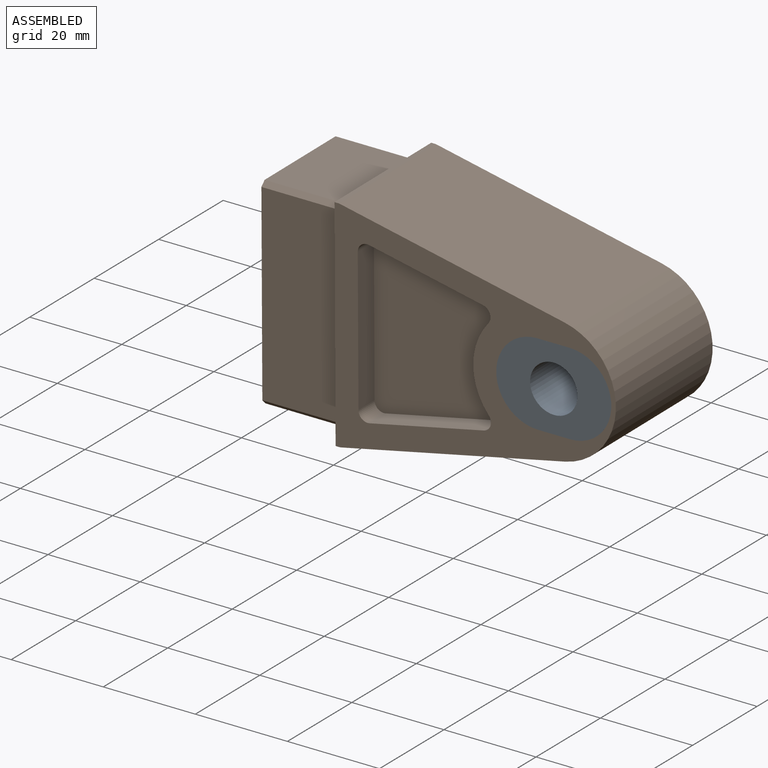
[diagram: assembled view]
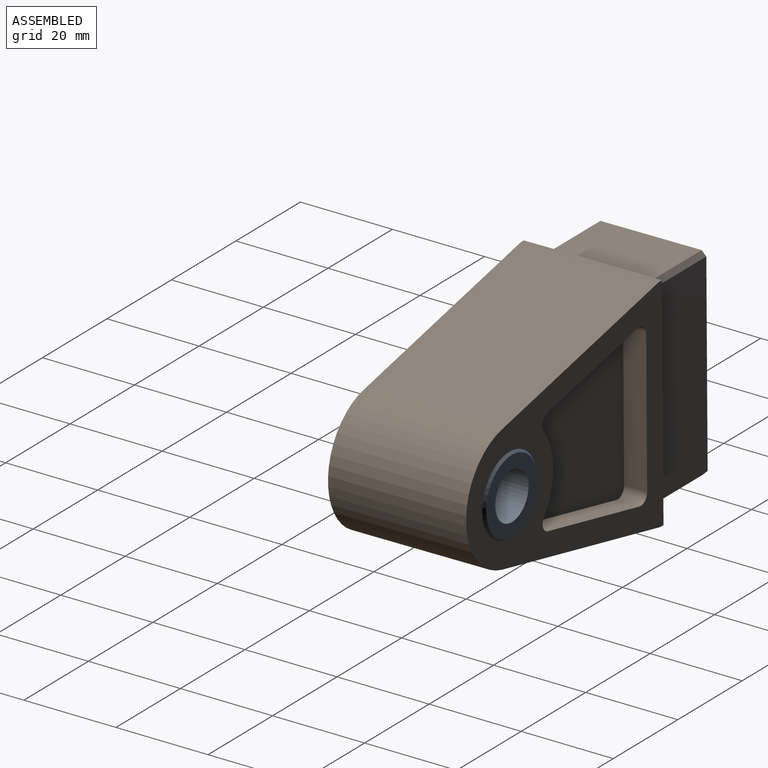
[diagram: assembled view, second angle]
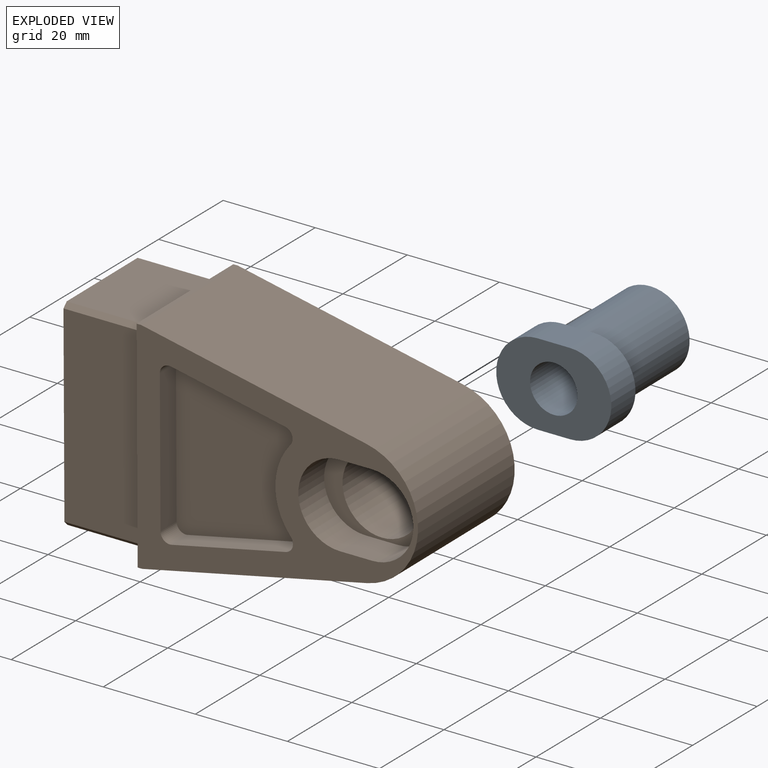
[diagram: exploded view]
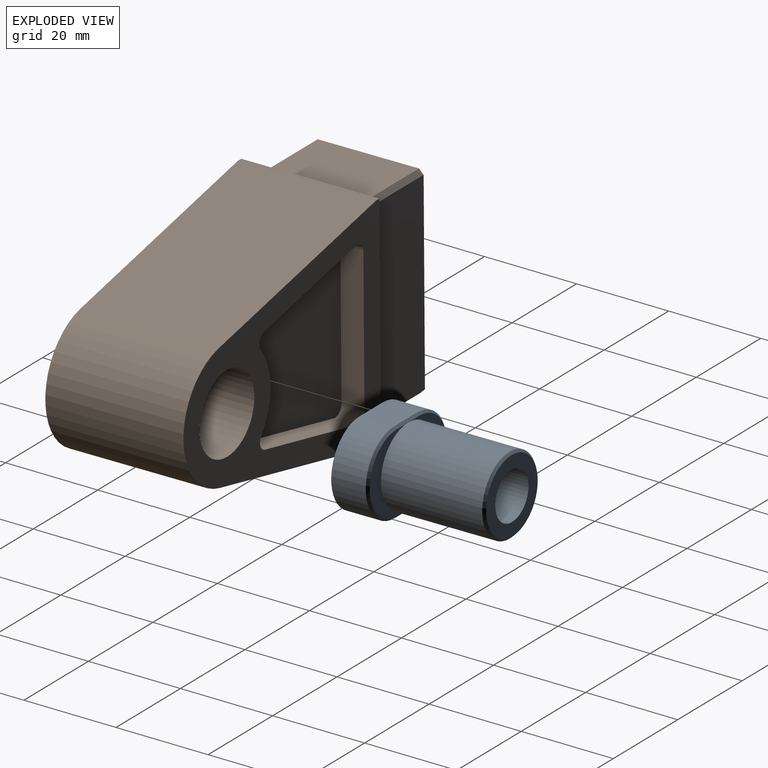
[diagram: exploded view, second angle]
ASSEMBLY  parts=2 mates=2
PART A: 15 faces, bbox 25x30.5x18 mm
  f0: plane 17x12mm, normal (0,1,0), area 59.5mm2, adj f7,f10,f12,f13
  f1: plane 7.5x7mm, normal (0,0,1), area 52.5mm2, adj f3,f4,f5,f13
  f2: plane 7.5x7mm, normal (0,0,-1), area 52.5mm2, adj f3,f4,f5,f10
  f3: cylinder r=9mm len=18mm, axis (0,-1,0), area 212.1mm2, adj f1,f2,f5,f11
  f4: cylinder r=9mm len=18mm, axis (0,-1,0), area 212.1mm2, adj f1,f2,f5,f12
  f5: plane 25x18mm, normal (0,-1,0), area 297.1mm2, adj f1,f2,f3,f4,f9
  f6: plane 17x12mm, normal (0,1,0), area 59.5mm2, adj f7,f10,f11,f13
  f7: cylinder r=8.5mm len=22mm, axis (0,1,0), area 1175mm2, adj f0,f6,f14
  f8: plane 16x16mm, normal (0,1,0), area 117.7mm2, adj f9,f14
  f9: cylinder r=5.15mm len=30.5mm, axis (0,1,0), area 986.9mm2, adj f5,f8
  f10: plane 7x0.5mm, normal (0,0.71,-0.71), area 4.9mm2, adj f0,f2,f6,f11,f12
  f11: cone r=9mm half-angle=45deg, axis (0,-1,0), area 19.4mm2, adj f3,f6,f10,f13
  f12: cone r=9mm half-angle=45deg, axis (0,-1,0), area 19.4mm2, adj f0,f4,f10,f13
  f13: plane 7x0.5mm, normal (0,0.71,0.71), area 4.9mm2, adj f0,f1,f6,f11,f12
  f14: cone r=8mm half-angle=45deg, axis (0,-1,0), area 36.7mm2, adj f7,f8
PART B: 41 faces, bbox 79x30x48 mm
  f0: plane 61x48mm, normal (0,-1,0), area 927.4mm2, adj f4,f5,f6,f7,f8,f9,f17,f18
  f1: plane 22x18mm, normal (0,0,1), area 396mm2, adj f2,f9,f13,f16
  f2: plane 44x24mm, normal (-1,0,0), area 1054mm2, adj f1,f3,f11,f12,f13,f14,f15,f16
  f3: plane 22x18mm, normal (0,0,-1), area 396mm2, adj f2,f9,f14,f15
  f4: plane 30x1mm, normal (0,0,-1), area 30mm2, adj f0,f5,f9,f10
  f5: plane 48.89x30mm, normal (0.21,0,-0.98), area 1498.8mm2, adj f0,f4,f6,f10
  f6: cylinder r=14mm len=30mm, axis (0,1,0), area 1145mm2, adj f0,f5,f7,f10
  f7: plane 48.89x30mm, normal (0.21,0,0.98), area 1498.8mm2, adj f0,f6,f8,f10
  f8: plane 30x1mm, normal (0,0,1), area 30mm2, adj f0,f7,f9,f10
  f9: plane 48x30mm, normal (-1,0,0), area 386mm2, adj f0,f1,f3,f4,f8,f10,f11,f12
  f10: plane 61x48mm, normal (0,1,0), area 989.3mm2, adj f4,f5,f6,f7,f8,f9,f22,f28
  f11: plane 42x18mm, normal (0,1,0), area 756mm2, adj f2,f9,f15,f16
  f12: plane 42x18mm, normal (0,-1,0), area 756mm2, adj f2,f9,f13,f14
  f13: plane 18x1mm, normal (0,-0.71,0.71), area 25.5mm2, adj f1,f2,f9,f12
  f14: plane 18x1mm, normal (0,-0.71,-0.71), area 25.5mm2, adj f2,f3,f9,f12
  f15: plane 18x1mm, normal (0,0.71,-0.71), area 25.5mm2, adj f2,f3,f9,f11
  f16: plane 18x1mm, normal (0,0.71,0.71), area 25.5mm2, adj f1,f2,f9,f11
  f17: cylinder r=9mm len=18mm, axis (0,-1,0), area 226.2mm2, adj f0,f18,f20,f21
  f18: plane 8x7mm, normal (0,0,1), area 56mm2, adj f0,f17,f19,f21
  f19: cylinder r=9mm len=18mm, axis (0,-1,0), area 226.2mm2, adj f0,f18,f20,f21
  f20: plane 8x7mm, normal (0,0,-1), area 56mm2, adj f0,f17,f19,f21
  f21: plane 25x18mm, normal (0,-1,0), area 153.5mm2, adj f17,f18,f19,f20,f22
  f22: cylinder r=8.5mm len=22mm, axis (0,-1,0), area 1175mm2, adj f10,f21
  f23: cylinder r=14mm len=18.12mm, axis (0,-1,0), area 98.6mm2, adj f0,f27,f37,f40
  f24: plane 24.8x5.23mm, normal (-0.21,0,-0.98), area 126.7mm2, adj f0,f27,f37,f38
  f25: plane 31.16x5mm, normal (1,0,0), area 155.8mm2, adj f0,f27,f38,f39
  f26: plane 24.8x5.23mm, normal (-0.21,0,0.98), area 126.7mm2, adj f0,f27,f39,f40
  f27: plane 35.16x28.8mm, normal (0,-1,0), area 810.8mm2, adj f23,f24,f25,f26,f37,f38,f39,f40
  f28: plane 28.34x5.97mm, normal (-0.21,0,0.98), area 144.8mm2, adj f10,f32,f33,f36
  f29: plane 31.16x5mm, normal (1,0,0), area 155.8mm2, adj f10,f32,f33,f34
  f30: plane 28.34x5.97mm, normal (-0.21,0,-0.98), area 144.8mm2, adj f10,f32,f34,f35
  f31: cylinder r=13.5mm len=16.74mm, axis (0,1,0), area 90.3mm2, adj f10,f32,f35,f36
  f32: plane 35.16x32.34mm, normal (0,1,0), area 902.3mm2, adj f28,f29,f30,f31,f33,f34,f35,f36
  f33: cylinder r=2mm len=5mm, axis (0,-1,0), area 17.8mm2, adj f10,f28,f29,f32
  f34: cylinder r=2mm len=5mm, axis (0,-1,0), area 17.8mm2, adj f10,f29,f30,f32
  f35: cylinder r=2mm len=5mm, axis (0,1,0), area 20.3mm2, adj f10,f30,f31,f32
  f36: cylinder r=2mm len=5mm, axis (0,1,0), area 20.3mm2, adj f10,f28,f31,f32
  f37: cylinder r=2mm len=5mm, axis (0,-1,0), area 20.7mm2, adj f0,f23,f24,f27
  f38: cylinder r=2mm len=5mm, axis (0,1,0), area 17.8mm2, adj f0,f24,f25,f27
  f39: cylinder r=2mm len=5mm, axis (0,1,0), area 17.8mm2, adj f0,f25,f26,f27
  f40: cylinder r=2mm len=5mm, axis (0,-1,0), area 20.7mm2, adj f0,f23,f26,f27
PLACE A rot(axis=(1,0,0),0.4deg) t=(65.5,-16.66,-0.1)mm
PLACE B rot(axis=(1,0,0),0.4deg) t=(19,13.34,0.1)mm
MATE slider A.f7 <-> B.f22  axis (0,1,0.01) through (65.5,2.34,0.03)mm
MATE planar A.f0 <-> B.f22  axis (0,1,0.01) through (73.93,-8.66,-0.05)mm
